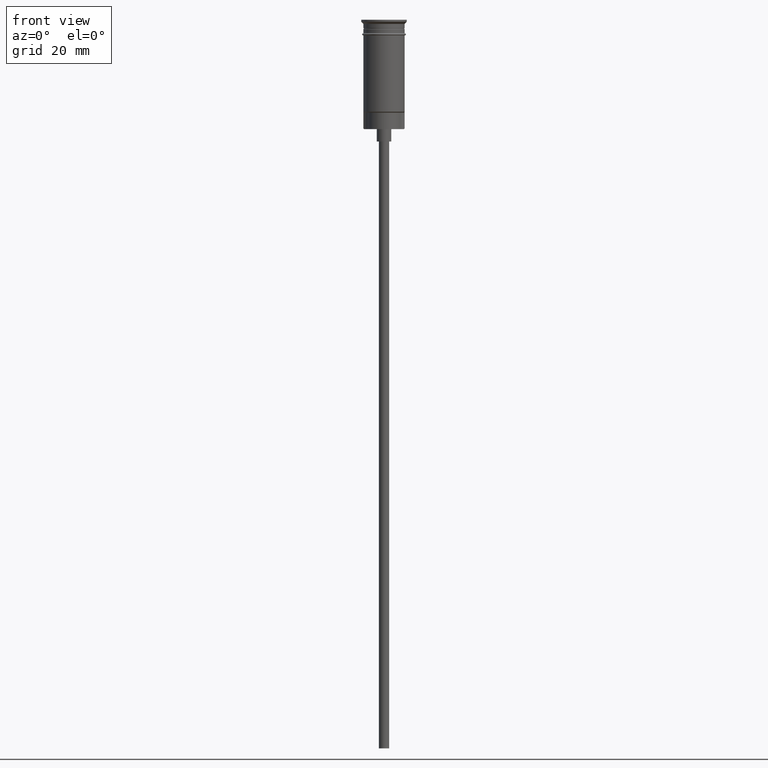
[diagram: clean part render]
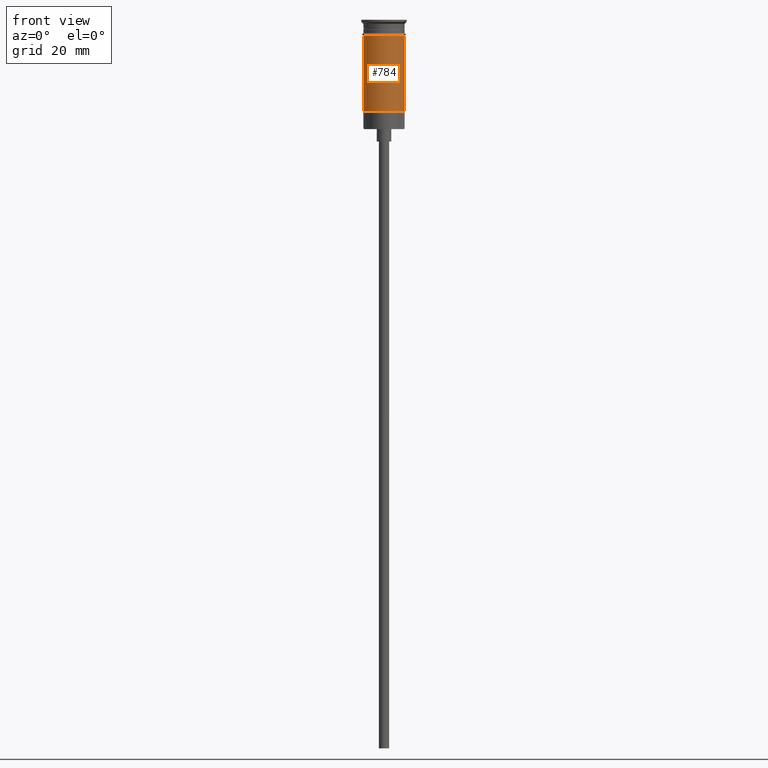
[diagram: same view with one face highlighted and labeled with its STEP entity id]
A machine part, front view. The second image highlights one B-rep face of the part: STEP entity #784.
In plain terms, the highlighted cylindrical surface (edge-blend (fillet) strip) has radius 5 mm, axis along (-0, -0, 1).
Its self-contained STEP definition (entity closure, byte-faithful):
#36 = DIRECTION ( 'NONE',  ( -0.000000000000000000, -0.000000000000000000, 1.000000000000000000 ) ) ;
#202 = DIRECTION ( 'NONE',  ( -1.000000000000000000, 0.000000000000000000, 0.000000000000000000 ) ) ;
#294 = CIRCLE ( 'NONE', #891, 4.999999999999999112 ) ;
#300 = VECTOR ( 'NONE', #1057, 1000.000000000000000 ) ;
#315 = EDGE_CURVE ( 'NONE', #1344, #333, #294, .T. ) ;
#333 = VERTEX_POINT ( 'NONE', #1242 ) ;
#341 = DIRECTION ( 'NONE',  ( -0.000000000000000000, -0.000000000000000000, 1.000000000000000000 ) ) ;
#457 = CARTESIAN_POINT ( 'NONE',  ( 0.000000000000000000, 0.000000000000000000, -22.30000000000001137 ) ) ;
#679 = EDGE_LOOP ( 'NONE', ( #857, #1255, #1389, #968 ) ) ;
#743 = EDGE_CURVE ( 'NONE', #936, #1377, #1270, .T. ) ;
#773 = AXIS2_PLACEMENT_3D ( 'NONE', #457, #817, #202 ) ;
#784 = ADVANCED_FACE ( 'NONE', ( #927 ), #938, .T. ) ;
#817 = DIRECTION ( 'NONE',  ( -0.000000000000000000, -0.000000000000000000, 1.000000000000000000 ) ) ;
#857 = ORIENTED_EDGE ( 'NONE', *, *, #1353, .F. ) ;
#891 = AXIS2_PLACEMENT_3D ( 'NONE', #1135, #36, #1571 ) ;
#927 = FACE_OUTER_BOUND ( 'NONE', #679, .T. ) ;
#935 = VECTOR ( 'NONE', #1479, 1000.000000000000000 ) ;
#936 = VERTEX_POINT ( 'NONE', #958 ) ;
#938 = CYLINDRICAL_SURFACE ( 'NONE', #959, 4.999999999999996447 ) ;
#958 = CARTESIAN_POINT ( 'NONE',  ( -4.999999999999993783, 0.000000000000000000, -22.30000000000001137 ) ) ;
#959 = AXIS2_PLACEMENT_3D ( 'NONE', #1301, #341, #1421 ) ;
#967 = CARTESIAN_POINT ( 'NONE',  ( -4.999999999999999112, 6.123233995736765296E-16, -3.799999999999998934 ) ) ;
#968 = ORIENTED_EDGE ( 'NONE', *, *, #315, .F. ) ;
#1057 = DIRECTION ( 'NONE',  ( -0.000000000000000000, -0.000000000000000000, 1.000000000000000000 ) ) ;
#1135 = CARTESIAN_POINT ( 'NONE',  ( 0.000000000000000000, 0.000000000000000000, -3.799999999999998934 ) ) ;
#1181 = CARTESIAN_POINT ( 'NONE',  ( 4.999999999999996447, 0.000000000000000000, 0.000000000000000000 ) ) ;
#1186 = EDGE_CURVE ( 'NONE', #1377, #333, #1288, .T. ) ;
#1242 = CARTESIAN_POINT ( 'NONE',  ( 4.999999999999999112, 0.000000000000000000, -3.799999999999998934 ) ) ;
#1255 = ORIENTED_EDGE ( 'NONE', *, *, #743, .T. ) ;
#1270 = CIRCLE ( 'NONE', #773, 4.999999999999996447 ) ;
#1288 = LINE ( 'NONE', #1181, #300 ) ;
#1301 = CARTESIAN_POINT ( 'NONE',  ( 0.000000000000000000, 0.000000000000000000, 0.000000000000000000 ) ) ;
#1344 = VERTEX_POINT ( 'NONE', #967 ) ;
#1351 = LINE ( 'NONE', #1597, #935 ) ;
#1353 = EDGE_CURVE ( 'NONE', #936, #1344, #1351, .T. ) ;
#1377 = VERTEX_POINT ( 'NONE', #1450 ) ;
#1389 = ORIENTED_EDGE ( 'NONE', *, *, #1186, .T. ) ;
#1421 = DIRECTION ( 'NONE',  ( 1.000000000000000000, 0.000000000000000000, 0.000000000000000000 ) ) ;
#1450 = CARTESIAN_POINT ( 'NONE',  ( 4.999999999999996447, 6.123233995736761352E-16, -22.30000000000001137 ) ) ;
#1479 = DIRECTION ( 'NONE',  ( -0.000000000000000000, -0.000000000000000000, 1.000000000000000000 ) ) ;
#1571 = DIRECTION ( 'NONE',  ( 1.000000000000000000, 0.000000000000000000, 0.000000000000000000 ) ) ;
#1597 = CARTESIAN_POINT ( 'NONE',  ( -4.999999999999996447, 6.123233995736762338E-16, 0.000000000000000000 ) ) ;